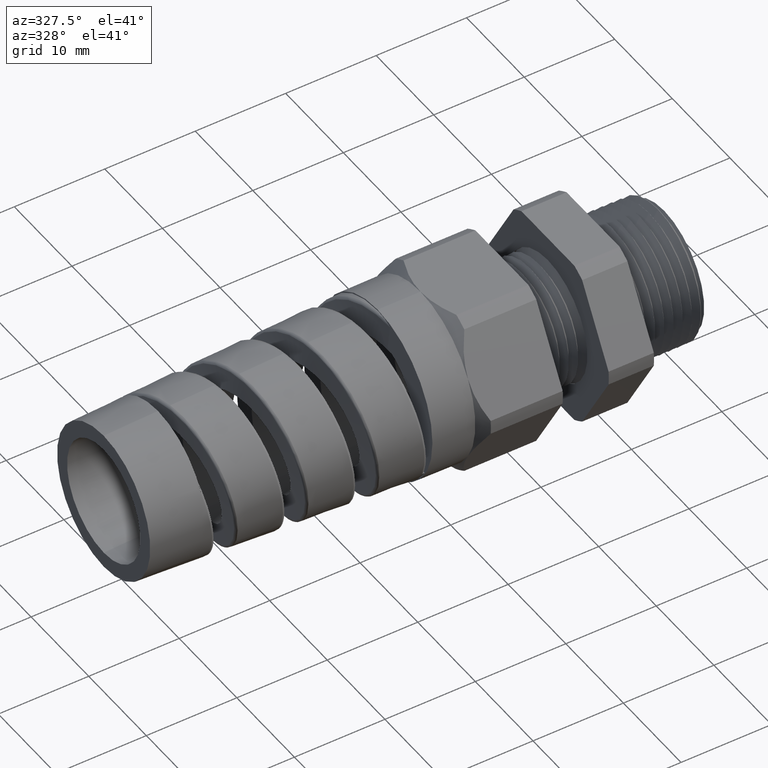
[diagram: clean part render]
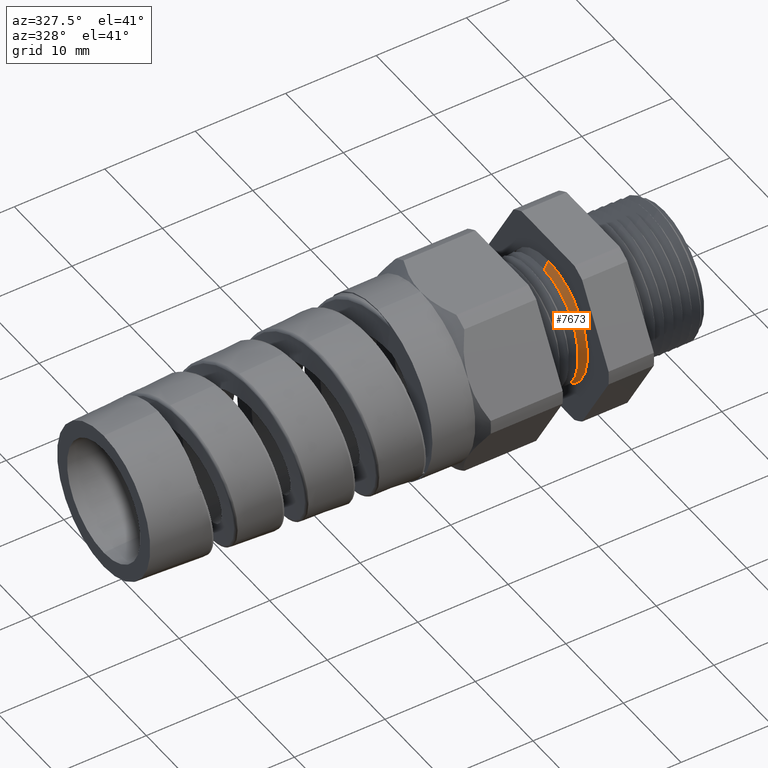
[diagram: same view with one face highlighted and labeled with its STEP entity id]
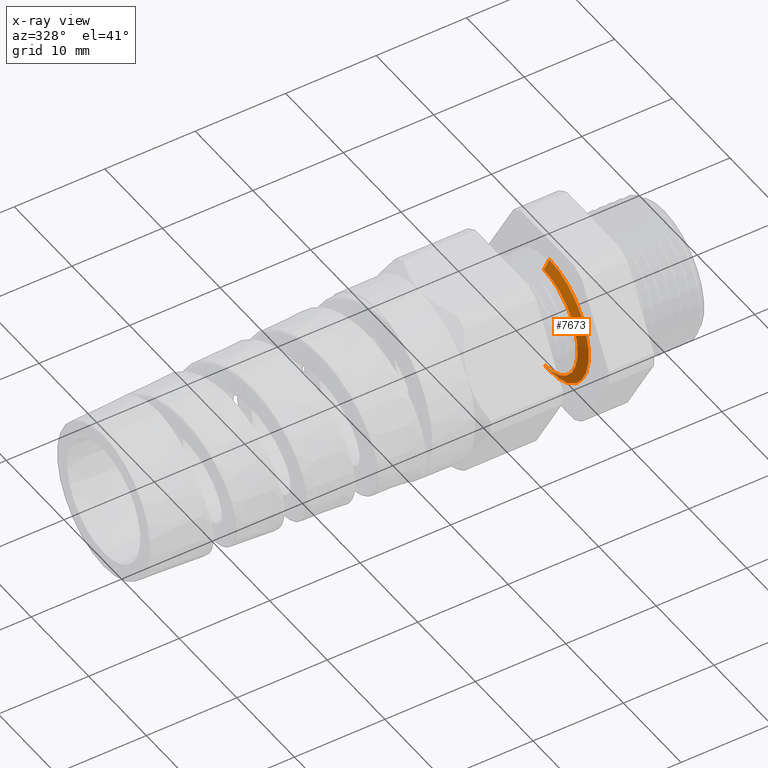
[diagram: x-ray of the same camera — body ghosted, the highlighted face saturated]
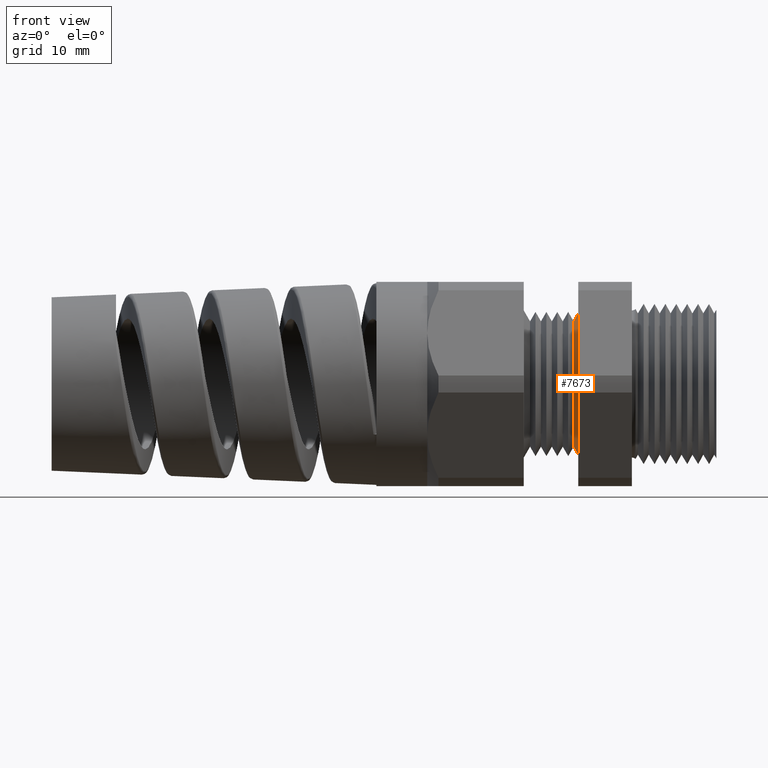
[diagram: same view with one face highlighted and labeled with its STEP entity id]
A machine part, auxiliary view. The second image highlights one B-rep face of the part: STEP entity #7673.
The next image is the same camera in x-ray: the body ghosted, the highlighted face saturated — about 2% of this face is hidden behind the body in this view.
A second angle (front view) of the same face is appended — the face is thin or edge-on in the first view.
In plain terms, the highlighted conical surface has half-angle 60 deg.
Its self-contained STEP definition (entity closure, byte-faithful):
#1484 = CARTESIAN_POINT ( 'NONE',  ( -0.5238351230906828100, 0.0000000000000000000, 0.2300000000000000100 ) ) ;
#1485 = CARTESIAN_POINT ( 'NONE',  ( -0.5238351230906828100, 3.028802685783895300E-017, -0.2300000000000000100 ) ) ;
#2075 = VERTEX_POINT ( 'NONE', #1485 ) ;
#2771 = VERTEX_POINT ( 'NONE', #1484 ) ;
#4194 = DIRECTION ( 'NONE',  ( 0.0000000000000000000, 0.0000000000000000000, -1.000000000000000000 ) ) ;
#4195 = DIRECTION ( 'NONE',  ( 1.000000000000000000, 0.0000000000000000000, 0.0000000000000000000 ) ) ;
#4196 = CARTESIAN_POINT ( 'NONE',  ( -0.5007411123230974800, 0.0000000000000000000, 0.0000000000000000000 ) ) ;
#4197 = AXIS2_PLACEMENT_3D ( 'NONE', #4196, #4195, #4194 ) ;
#4198 = CIRCLE ( 'NONE', #4197, 0.2699999999999999600 ) ;
#4288 = DIRECTION ( 'NONE',  ( 0.0000000000000000000, 0.0000000000000000000, -1.000000000000000000 ) ) ;
#4289 = DIRECTION ( 'NONE',  ( 1.000000000000000000, 0.0000000000000000000, 0.0000000000000000000 ) ) ;
#4290 = AXIS2_PLACEMENT_3D ( 'NONE', #4296, #4289, #4288 ) ;
#4291 = CIRCLE ( 'NONE', #4290, 0.2300000000000000100 ) ;
#4296 = CARTESIAN_POINT ( 'NONE',  ( -0.5238351230906828100, 0.0000000000000000000, 0.0000000000000000000 ) ) ;
#4298 = DIRECTION ( 'NONE',  ( 0.0000000000000000000, 0.0000000000000000000, -1.000000000000000000 ) ) ;
#4299 = DIRECTION ( 'NONE',  ( 1.000000000000000000, 0.0000000000000000000, 0.0000000000000000000 ) ) ;
#4300 = AXIS2_PLACEMENT_3D ( 'NONE', #4303, #4299, #4298 ) ;
#4301 = CONICAL_SURFACE ( 'NONE', #4300, 0.2300000000000000100, 1.047197551196592300 ) ;
#4303 = CARTESIAN_POINT ( 'NONE',  ( -0.5238351230906828100, 0.0000000000000000000, 0.0000000000000000000 ) ) ;
#4304 = FACE_OUTER_BOUND ( 'NONE', #7671, .T. ) ;
#4312 = DIRECTION ( 'NONE',  ( 0.5000000000000046600, 0.0000000000000000000, -0.8660254037844359300 ) ) ;
#4313 = VECTOR ( 'NONE', #4312, 39.37007874015748100 ) ;
#4314 = CARTESIAN_POINT ( 'NONE',  ( -0.5238351230906828100, 0.0000000000000000000, -0.2300000000000000100 ) ) ;
#4315 = LINE ( 'NONE', #4314, #4313 ) ;
#4316 = CARTESIAN_POINT ( 'NONE',  ( -0.5007411123230974800, 0.0000000000000000000, -0.2699999999999999600 ) ) ;
#4366 = CARTESIAN_POINT ( 'NONE',  ( -0.5007411123230974800, 3.306546357697853700E-017, 0.2699999999999999600 ) ) ;
#4367 = DIRECTION ( 'NONE',  ( 0.5000000000000046600, 1.060575238724903700E-016, 0.8660254037844359300 ) ) ;
#4368 = VECTOR ( 'NONE', #4367, 39.37007874015748100 ) ;
#4369 = CARTESIAN_POINT ( 'NONE',  ( -0.5238351230906828100, 2.816687638038912300E-017, 0.2300000000000000100 ) ) ;
#4370 = LINE ( 'NONE', #4369, #4368 ) ;
#7629 = EDGE_CURVE ( 'NONE', #7715, #7702, #4198, .T. ) ;
#7671 = EDGE_LOOP ( 'NONE', ( #7707, #7706, #7705, #7700 ) ) ;
#7673 = ADVANCED_FACE ( 'NONE', ( #4304 ), #4301, .T. ) ;
#7681 = EDGE_CURVE ( 'NONE', #2771, #2075, #4291, .T. ) ;
#7700 = ORIENTED_EDGE ( 'NONE', *, *, #7629, .F. ) ;
#7702 = VERTEX_POINT ( 'NONE', #4316 ) ;
#7703 = EDGE_CURVE ( 'NONE', #2075, #7702, #4315, .T. ) ;
#7705 = ORIENTED_EDGE ( 'NONE', *, *, #7703, .T. ) ;
#7706 = ORIENTED_EDGE ( 'NONE', *, *, #7681, .T. ) ;
#7707 = ORIENTED_EDGE ( 'NONE', *, *, #7712, .F. ) ;
#7712 = EDGE_CURVE ( 'NONE', #2771, #7715, #4370, .T. ) ;
#7715 = VERTEX_POINT ( 'NONE', #4366 ) ;